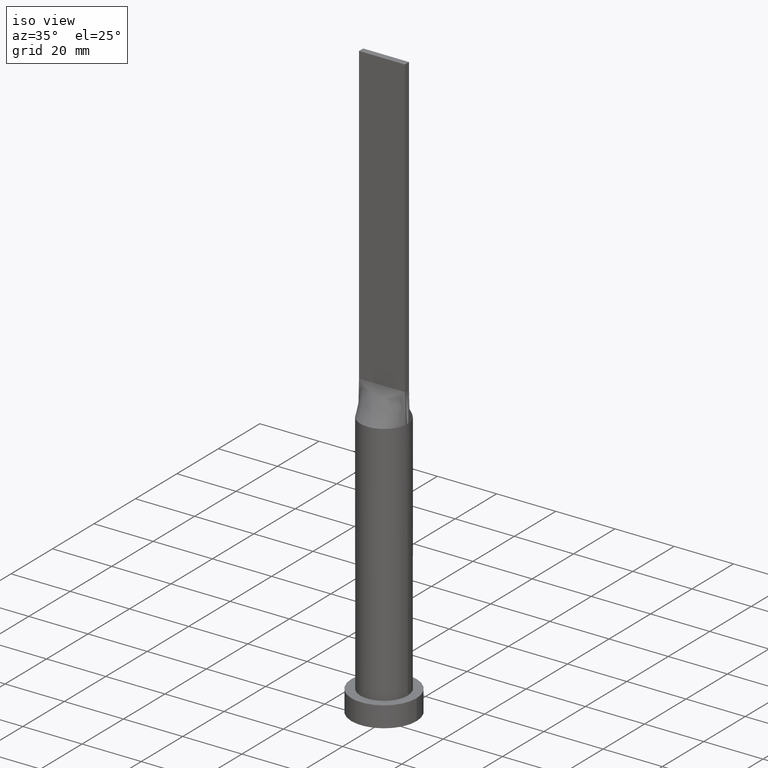
[diagram: clean part render]
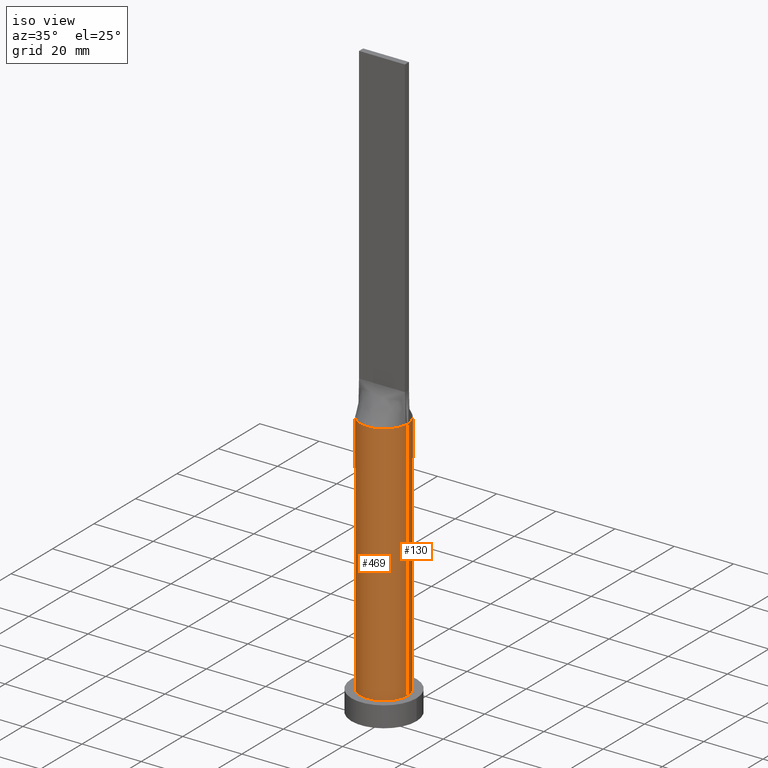
[diagram: same view with one multi-face feature highlighted, each face labeled with its STEP entity id]
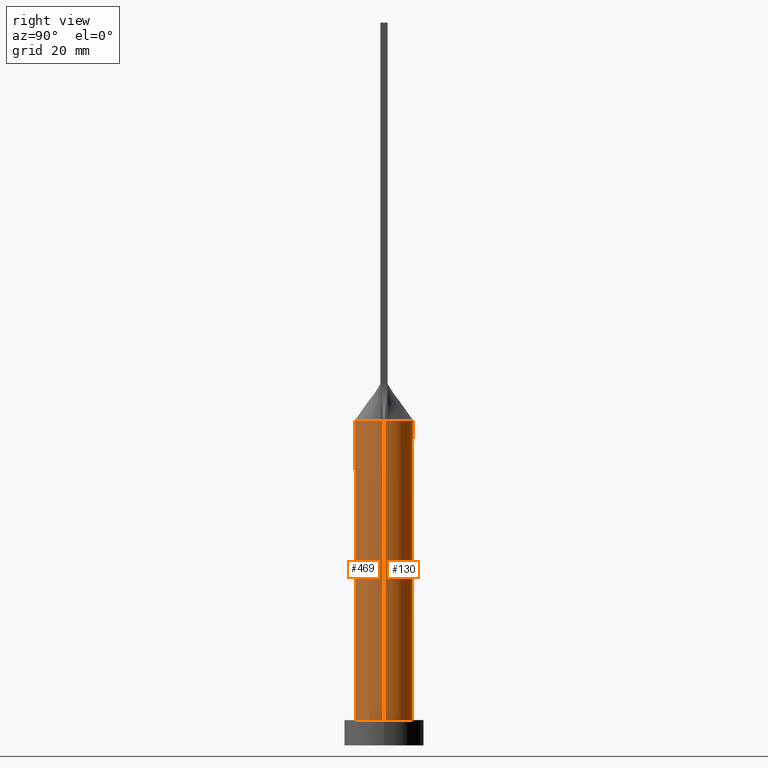
[diagram: same view with one multi-face feature highlighted, each face labeled with its STEP entity id]
A machine part, iso view. The highlighted faces form ONE feature: a constant-radius fillet chain: 2 tangent blend faces with common blend radius 8 mm. The faces share edges in the B-rep.
A second angle (right view) of the same feature is appended — it is thin or edge-on in the first view.
Their STEP definitions:
[1] entity #130 (Cylinder):
#6 = VECTOR ( 'NONE', #561, 1000.000000000000000 ) ;
#30 = B_SPLINE_CURVE_WITH_KNOTS ( 'NONE', 3,
 ( #274, #121, #570, #558, #236, #229, #616, #111, #173, #608, #334, #280, #619, #428, #322, #382, #168, #371, #244, #287, #345, #586, #142, #180, #79, #579, #347, #85, #296, #623 ),
 .UNSPECIFIED., .F., .F.,
 ( 4, 2, 2, 2, 2, 2, 2, 2, 2, 2, 2, 2, 2, 2, 4 ),
 ( 0.000000000000000000, 0.1250000000000000000, 0.1875000000000000000, 0.2500000000000000000, 0.3125000000000000000, 0.3750000000000000000, 0.4375000000000000000, 0.5000000000000000000, 0.5625000000000000000, 0.6250000000000000000, 0.6875000000000000000, 0.7500000000000000000, 0.8125000000000000000, 0.8750000000000000000, 1.000000000000000000 ),
 .UNSPECIFIED. ) ;
#55 = CARTESIAN_POINT ( 'NONE',  ( 0.000000000000000000, 0.000000000000000000, 7.000000000000000000 ) ) ;
#61 = CARTESIAN_POINT ( 'NONE',  ( 0.000000000000000000, 0.000000000000000000, 90.00000000000001421 ) ) ;
#64 = CARTESIAN_POINT ( 'NONE',  ( -7.934264564332944580, 1.023776086464161406, 90.00000000000001421 ) ) ;
#79 = CARTESIAN_POINT ( 'NONE',  ( -6.511821874825407974, 4.668925682402791821, 90.00000000000001421 ) ) ;
#82 = CIRCLE ( 'NONE', #451, 8.000000000000000000 ) ;
#85 = CARTESIAN_POINT ( 'NONE',  ( -7.675166908885236339, 2.399868494543667907, 90.00000000000002842 ) ) ;
#102 = CIRCLE ( 'NONE', #626, 8.000000000000000000 ) ;
#111 = CARTESIAN_POINT ( 'NONE',  ( 5.562660223239392465, 5.770452176164421410, 90.00000000000001421 ) ) ;
#118 = DIRECTION ( 'NONE',  ( 0.000000000000000000, 0.000000000000000000, 1.000000000000000000 ) ) ;
#120 = VECTOR ( 'NONE', #176, 1000.000000000000000 ) ;
#121 = CARTESIAN_POINT ( 'NONE',  ( 7.849610172922079521, 1.679519592204998801, 90.00000000000001421 ) ) ;
#123 = EDGE_CURVE ( 'NONE', #314, #295, #363, .T. ) ;
#130 = ADVANCED_FACE ( 'NONE', ( #266 ), #556, .T. ) ;
#142 = CARTESIAN_POINT ( 'NONE',  ( -5.562660223239390689, 5.770452176164420521, 90.00000000000001421 ) ) ;
#146 = ORIENTED_EDGE ( 'NONE', *, *, #620, .F. ) ;
#147 = CARTESIAN_POINT ( 'NONE',  ( -8.000000000000000000, 0.000000000000000000, 90.00000000000001421 ) ) ;
#156 = VERTEX_POINT ( 'NONE', #455 ) ;
#167 = ORIENTED_EDGE ( 'NONE', *, *, #123, .T. ) ;
#168 = CARTESIAN_POINT ( 'NONE',  ( -1.172177046651856402, 7.934824862069282503, 90.00000000000004263 ) ) ;
#173 = CARTESIAN_POINT ( 'NONE',  ( 5.183259239191615464, 6.116644610143058713, 90.00000000000001421 ) ) ;
#176 = DIRECTION ( 'NONE',  ( -0.000000000000000000, -0.000000000000000000, -1.000000000000000000 ) ) ;
#179 = EDGE_LOOP ( 'NONE', ( #341, #167, #285, #146, #563, #449 ) ) ;
#180 = CARTESIAN_POINT ( 'NONE',  ( -6.226863775955933100, 5.046530946333157353, 90.00000000000002842 ) ) ;
#196 = EDGE_CURVE ( 'NONE', #314, #156, #102, .T. ) ;
#205 = DIRECTION ( 'NONE',  ( 1.000000000000000000, 0.000000000000000000, 0.000000000000000000 ) ) ;
#216 = DIRECTION ( 'NONE',  ( 1.000000000000000000, 0.000000000000000000, 0.000000000000000000 ) ) ;
#224 = DIRECTION ( 'NONE',  ( -1.000000000000000000, 0.000000000000000000, 0.000000000000000000 ) ) ;
#229 = CARTESIAN_POINT ( 'NONE',  ( 6.511821874825409751, 4.668925682402791821, 90.00000000000001421 ) ) ;
#236 = CARTESIAN_POINT ( 'NONE',  ( 6.994548530637815453, 3.908833842696238570, 90.00000000000001421 ) ) ;
#244 = CARTESIAN_POINT ( 'NONE',  ( -2.847317194822260422, 7.497028652483947120, 90.00000000000004263 ) ) ;
#256 = CARTESIAN_POINT ( 'NONE',  ( 7.999864793045824207, 2.000157186781041891E-15, 90.00000000000001421 ) ) ;
#266 = FACE_OUTER_BOUND ( 'NONE', #179, .T. ) ;
#274 = CARTESIAN_POINT ( 'NONE',  ( 7.934252830235720033, 1.023774570959714802, 90.00000000000001421 ) ) ;
#280 = CARTESIAN_POINT ( 'NONE',  ( 2.847317194822259534, 7.497028652483948008, 90.00000000000004263 ) ) ;
#283 = CIRCLE ( 'NONE', #362, 8.000000000000000000 ) ;
#285 = ORIENTED_EDGE ( 'NONE', *, *, #358, .T. ) ;
#287 = CARTESIAN_POINT ( 'NONE',  ( -3.862537548001455878, 7.028047916340264045, 90.00000000000004263 ) ) ;
#295 = VERTEX_POINT ( 'NONE', #321 ) ;
#296 = CARTESIAN_POINT ( 'NONE',  ( -7.849610172922081297, 1.679519592204999023, 90.00000000000000000 ) ) ;
#314 = VERTEX_POINT ( 'NONE', #256 ) ;
#319 = DIRECTION ( 'NONE',  ( -0.000000000000000000, -0.000000000000000000, -1.000000000000000000 ) ) ;
#321 = CARTESIAN_POINT ( 'NONE',  ( 8.000000000000000000, 9.797174393178825657E-16, 7.000000000000000000 ) ) ;
#322 = CARTESIAN_POINT ( 'NONE',  ( 0.5861720261543130750, 7.999999999999998224, 89.99999999999998579 ) ) ;
#334 = CARTESIAN_POINT ( 'NONE',  ( 3.862537548001455878, 7.028047916340264933, 90.00000000000002842 ) ) ;
#341 = ORIENTED_EDGE ( 'NONE', *, *, #196, .F. ) ;
#345 = CARTESIAN_POINT ( 'NONE',  ( -4.333237558274722900, 6.745559271922134670, 90.00000000000002842 ) ) ;
#347 = CARTESIAN_POINT ( 'NONE',  ( -7.192469010134845853, 3.526369025759696019, 90.00000000000002842 ) ) ;
#358 = EDGE_CURVE ( 'NONE', #295, #360, #82, .T. ) ;
#360 = VERTEX_POINT ( 'NONE', #361 ) ;
#361 = CARTESIAN_POINT ( 'NONE',  ( -8.000000000000000000, 0.000000000000000000, 7.000000000000000000 ) ) ;
#362 = AXIS2_PLACEMENT_3D ( 'NONE', #564, #118, #464 ) ;
#363 = LINE ( 'NONE', #600, #6 ) ;
#371 = CARTESIAN_POINT ( 'NONE',  ( -2.302877821226935851, 7.683241396761610886, 90.00000000000004263 ) ) ;
#382 = CARTESIAN_POINT ( 'NONE',  ( -0.5861720261543129640, 7.999999999999998224, 90.00000000000001421 ) ) ;
#428 = CARTESIAN_POINT ( 'NONE',  ( 1.172177046651856624, 7.934824862069278950, 90.00000000000004263 ) ) ;
#446 = VERTEX_POINT ( 'NONE', #64 ) ;
#449 = ORIENTED_EDGE ( 'NONE', *, *, #630, .F. ) ;
#451 = AXIS2_PLACEMENT_3D ( 'NONE', #55, #559, #205 ) ;
#455 = CARTESIAN_POINT ( 'NONE',  ( 7.934252830235720033, 1.023774570959714802, 90.00000000000001421 ) ) ;
#458 = DIRECTION ( 'NONE',  ( 0.000000000000000000, 0.000000000000000000, 1.000000000000000000 ) ) ;
#464 = DIRECTION ( 'NONE',  ( 1.000000000000000000, 0.000000000000000000, 0.000000000000000000 ) ) ;
#471 = VERTEX_POINT ( 'NONE', #547 ) ;
#480 = AXIS2_PLACEMENT_3D ( 'NONE', #513, #319, #224 ) ;
#492 = EDGE_CURVE ( 'NONE', #446, #471, #283, .T. ) ;
#513 = CARTESIAN_POINT ( 'NONE',  ( 0.000000000000000000, 0.000000000000000000, 90.00000000000001421 ) ) ;
#547 = CARTESIAN_POINT ( 'NONE',  ( -7.999864793045825984, 2.648518981350782698E-14, 90.00000000000001421 ) ) ;
#556 = CYLINDRICAL_SURFACE ( 'NONE', #480, 8.000000000000000000 ) ;
#558 = CARTESIAN_POINT ( 'NONE',  ( 7.192469010134847629, 3.526369025759696907, 90.00000000000004263 ) ) ;
#559 = DIRECTION ( 'NONE',  ( 0.000000000000000000, 0.000000000000000000, 1.000000000000000000 ) ) ;
#561 = DIRECTION ( 'NONE',  ( -0.000000000000000000, -0.000000000000000000, -1.000000000000000000 ) ) ;
#563 = ORIENTED_EDGE ( 'NONE', *, *, #492, .F. ) ;
#564 = CARTESIAN_POINT ( 'NONE',  ( 0.000000000000000000, 0.000000000000000000, 90.00000000000001421 ) ) ;
#570 = CARTESIAN_POINT ( 'NONE',  ( 7.675166908885234562, 2.399868494543665243, 90.00000000000000000 ) ) ;
#579 = CARTESIAN_POINT ( 'NONE',  ( -6.994548530637814565, 3.908833842696238570, 90.00000000000002842 ) ) ;
#586 = CARTESIAN_POINT ( 'NONE',  ( -5.183259239191613688, 6.116644610143057825, 90.00000000000002842 ) ) ;
#590 = LINE ( 'NONE', #147, #120 ) ;
#600 = CARTESIAN_POINT ( 'NONE',  ( 8.000000000000000000, 9.797174393178825657E-16, 90.00000000000001421 ) ) ;
#608 = CARTESIAN_POINT ( 'NONE',  ( 4.333237558274722900, 6.745559271922132893, 89.99999999999998579 ) ) ;
#616 = CARTESIAN_POINT ( 'NONE',  ( 6.226863775955932212, 5.046530946333158241, 90.00000000000002842 ) ) ;
#619 = CARTESIAN_POINT ( 'NONE',  ( 2.302877821226935406, 7.683241396761612663, 90.00000000000004263 ) ) ;
#620 = EDGE_CURVE ( 'NONE', #471, #360, #590, .T. ) ;
#623 = CARTESIAN_POINT ( 'NONE',  ( -7.934264564332944580, 1.023776086464161406, 90.00000000000001421 ) ) ;
#626 = AXIS2_PLACEMENT_3D ( 'NONE', #61, #458, #216 ) ;
#630 = EDGE_CURVE ( 'NONE', #156, #446, #30, .T. ) ;
[2] entity #469 (Cylinder):
#6 = VECTOR ( 'NONE', #561, 1000.000000000000000 ) ;
#31 = DIRECTION ( 'NONE',  ( 1.000000000000000000, 0.000000000000000000, 0.000000000000000000 ) ) ;
#48 = DIRECTION ( 'NONE',  ( 0.000000000000000000, 0.000000000000000000, 1.000000000000000000 ) ) ;
#51 = CIRCLE ( 'NONE', #340, 8.000000000000000000 ) ;
#63 = EDGE_CURVE ( 'NONE', #360, #295, #313, .T. ) ;
#90 = ORIENTED_EDGE ( 'NONE', *, *, #63, .T. ) ;
#95 = EDGE_LOOP ( 'NONE', ( #228, #443, #379, #151, #475, #90 ) ) ;
#107 = EDGE_CURVE ( 'NONE', #471, #220, #51, .T. ) ;
#120 = VECTOR ( 'NONE', #176, 1000.000000000000000 ) ;
#123 = EDGE_CURVE ( 'NONE', #314, #295, #363, .T. ) ;
#138 = DIRECTION ( 'NONE',  ( 1.000000000000000000, 9.769962616701377556E-15, 0.000000000000000000 ) ) ;
#147 = CARTESIAN_POINT ( 'NONE',  ( -8.000000000000000000, 0.000000000000000000, 90.00000000000001421 ) ) ;
#149 = FACE_OUTER_BOUND ( 'NONE', #95, .T. ) ;
#151 = ORIENTED_EDGE ( 'NONE', *, *, #107, .F. ) ;
#153 = DIRECTION ( 'NONE',  ( -1.000000000000000000, 0.000000000000000000, 0.000000000000000000 ) ) ;
#162 = AXIS2_PLACEMENT_3D ( 'NONE', #459, #430, #31 ) ;
#176 = DIRECTION ( 'NONE',  ( -0.000000000000000000, -0.000000000000000000, -1.000000000000000000 ) ) ;
#190 = VERTEX_POINT ( 'NONE', #420 ) ;
#207 = CARTESIAN_POINT ( 'NONE',  ( 0.000000000000000000, 0.000000000000000000, 90.00000000000001421 ) ) ;
#220 = VERTEX_POINT ( 'NONE', #412 ) ;
#228 = ORIENTED_EDGE ( 'NONE', *, *, #123, .F. ) ;
#243 = EDGE_CURVE ( 'NONE', #190, #314, #472, .T. ) ;
#255 = DIRECTION ( 'NONE',  ( 1.000000000000000000, 0.000000000000000000, 0.000000000000000000 ) ) ;
#256 = CARTESIAN_POINT ( 'NONE',  ( 7.999864793045824207, 2.000157186781041891E-15, 90.00000000000001421 ) ) ;
#295 = VERTEX_POINT ( 'NONE', #321 ) ;
#313 = CIRCLE ( 'NONE', #162, 8.000000000000000000 ) ;
#314 = VERTEX_POINT ( 'NONE', #256 ) ;
#315 = CARTESIAN_POINT ( 'NONE',  ( 0.000000000000000000, 0.000000000000000000, 90.00000000000001421 ) ) ;
#317 = CYLINDRICAL_SURFACE ( 'NONE', #635, 8.000000000000000000 ) ;
#321 = CARTESIAN_POINT ( 'NONE',  ( 8.000000000000000000, 9.797174393178825657E-16, 7.000000000000000000 ) ) ;
#340 = AXIS2_PLACEMENT_3D ( 'NONE', #315, #509, #463 ) ;
#360 = VERTEX_POINT ( 'NONE', #361 ) ;
#361 = CARTESIAN_POINT ( 'NONE',  ( -8.000000000000000000, 0.000000000000000000, 7.000000000000000000 ) ) ;
#363 = LINE ( 'NONE', #600, #6 ) ;
#376 = AXIS2_PLACEMENT_3D ( 'NONE', #434, #385, #138 ) ;
#379 = ORIENTED_EDGE ( 'NONE', *, *, #528, .F. ) ;
#385 = DIRECTION ( 'NONE',  ( 0.000000000000000000, 0.000000000000000000, 1.000000000000000000 ) ) ;
#412 = CARTESIAN_POINT ( 'NONE',  ( -7.934257051336532029, -1.023775119746132001, 90.00000000000001421 ) ) ;
#420 = CARTESIAN_POINT ( 'NONE',  ( 7.934268799922667981, -1.023776637617846319, 90.00000000000001421 ) ) ;
#430 = DIRECTION ( 'NONE',  ( 0.000000000000000000, 0.000000000000000000, 1.000000000000000000 ) ) ;
#434 = CARTESIAN_POINT ( 'NONE',  ( 0.000000000000000000, 0.000000000000000000, 90.00000000000001421 ) ) ;
#443 = ORIENTED_EDGE ( 'NONE', *, *, #243, .F. ) ;
#448 = DIRECTION ( 'NONE',  ( -0.000000000000000000, -0.000000000000000000, -1.000000000000000000 ) ) ;
#459 = CARTESIAN_POINT ( 'NONE',  ( 0.000000000000000000, 0.000000000000000000, 7.000000000000000000 ) ) ;
#463 = DIRECTION ( 'NONE',  ( 1.000000000000000000, 0.000000000000000000, 0.000000000000000000 ) ) ;
#469 = ADVANCED_FACE ( 'NONE', ( #149 ), #317, .T. ) ;
#471 = VERTEX_POINT ( 'NONE', #547 ) ;
#472 = CIRCLE ( 'NONE', #376, 8.000000000000000000 ) ;
#475 = ORIENTED_EDGE ( 'NONE', *, *, #620, .T. ) ;
#493 = CARTESIAN_POINT ( 'NONE',  ( 0.000000000000000000, 0.000000000000000000, 90.00000000000001421 ) ) ;
#509 = DIRECTION ( 'NONE',  ( 0.000000000000000000, 0.000000000000000000, 1.000000000000000000 ) ) ;
#528 = EDGE_CURVE ( 'NONE', #220, #190, #544, .T. ) ;
#544 = CIRCLE ( 'NONE', #578, 8.000000000000000000 ) ;
#547 = CARTESIAN_POINT ( 'NONE',  ( -7.999864793045825984, 2.648518981350782698E-14, 90.00000000000001421 ) ) ;
#561 = DIRECTION ( 'NONE',  ( -0.000000000000000000, -0.000000000000000000, -1.000000000000000000 ) ) ;
#578 = AXIS2_PLACEMENT_3D ( 'NONE', #207, #48, #255 ) ;
#590 = LINE ( 'NONE', #147, #120 ) ;
#600 = CARTESIAN_POINT ( 'NONE',  ( 8.000000000000000000, 9.797174393178825657E-16, 90.00000000000001421 ) ) ;
#620 = EDGE_CURVE ( 'NONE', #471, #360, #590, .T. ) ;
#635 = AXIS2_PLACEMENT_3D ( 'NONE', #493, #448, #153 ) ;